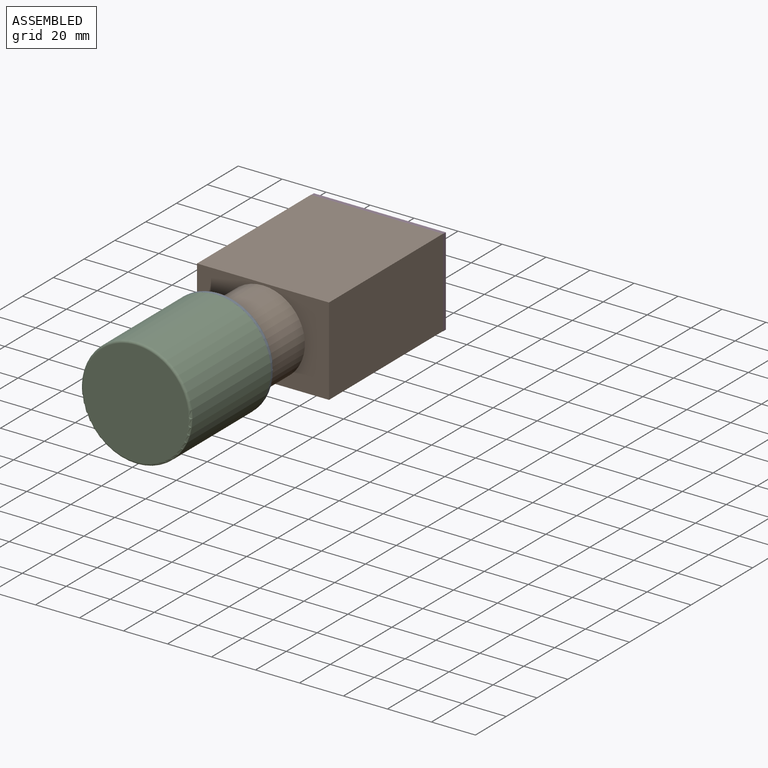
[diagram: assembled view]
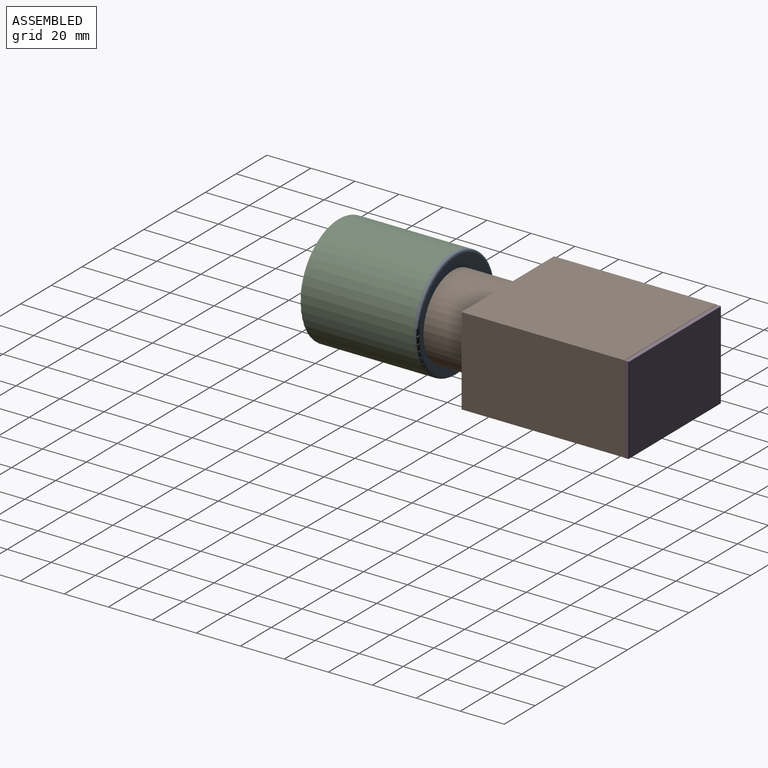
[diagram: assembled view, second angle]
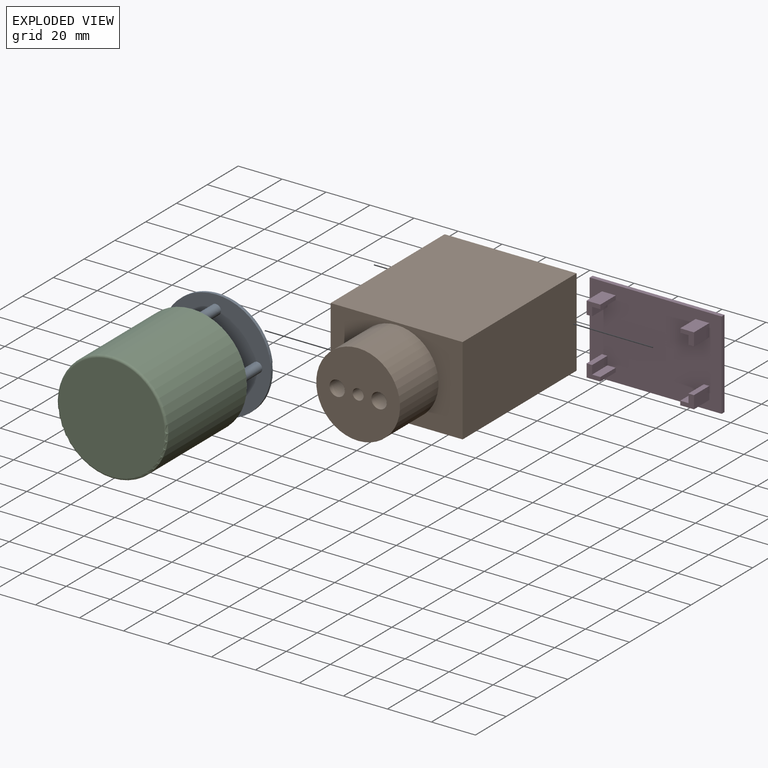
[diagram: exploded view]
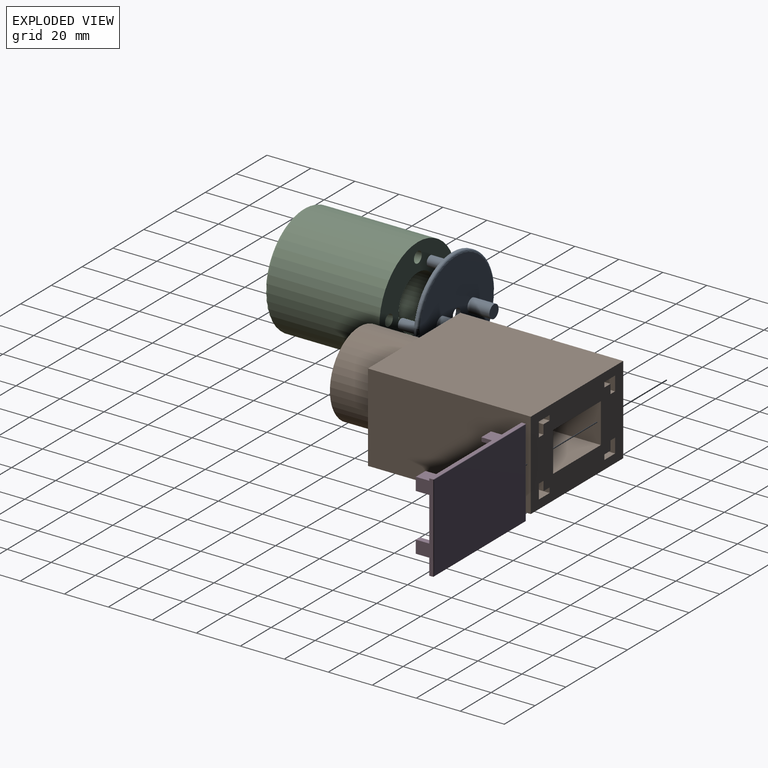
[diagram: exploded view, second angle]
ASSEMBLY  parts=4 mates=3
PART A: 17 faces, bbox 54.1x22x54.1 mm
  f0: cylinder r=25mm len=50mm, axis (0,1,0), area 157.1mm2, adj f1,f11
  f1: plane 50x50mm, normal (0,-1,0), area 1878.2mm2, adj f0,f3,f5,f7,f9,f12
  f2: plane 48x48mm, normal (0,1,0), area 1733.4mm2, adj f11,f12,f13,f15
  f3: cylinder r=2.29mm len=10mm, axis (0,1,0), area 143.6mm2, adj f1,f4
  f4: plane 4.57x4.57mm, normal (0,-1,0), area 16.4mm2, adj f3
  f5: cylinder r=2.29mm len=10mm, axis (0,1,0), area 143.6mm2, adj f1,f6
  f6: plane 4.57x4.57mm, normal (0,-1,0), area 16.4mm2, adj f5
  f7: cylinder r=2.29mm len=10mm, axis (0,1,0), area 143.6mm2, adj f1,f8
  f8: plane 4.57x4.57mm, normal (0,-1,0), area 16.4mm2, adj f7
  f9: cylinder r=2.29mm len=10mm, axis (0,1,0), area 143.6mm2, adj f1,f10
  f10: plane 4.57x4.57mm, normal (0,-1,0), area 16.4mm2, adj f9
  f11: torus R=24mm, axis (0,-1,0), area 243.2mm2, adj f0,f2
  f12: cylinder r=2.5mm len=5mm, axis (0,1,0), area 31.4mm2, adj f1,f2
  f13: cylinder r=3mm len=10mm, axis (0,-1,0), area 188.5mm2, adj f2,f14
  f14: plane 6x6mm, normal (0,1,0), area 28.3mm2, adj f13
  f15: cylinder r=3mm len=10mm, axis (0,-1,0), area 188.5mm2, adj f2,f16
  f16: plane 6x6mm, normal (0,1,0), area 28.3mm2, adj f15
PART B: 46 faces, bbox 60x99x40 mm
  f0: plane 60x40mm, normal (0,1,0), area 1727.4mm2, adj f2,f3,f4,f5,f7,f8,f9,f10
  f1: cylinder r=19.05mm len=38.1mm, axis (0,-1,0), area 2992.4mm2, adj f6,f43
  f2: plane 74x40mm, normal (-1,0,0), area 2960mm2, adj f0,f3,f5,f6
  f3: plane 74x60mm, normal (0,0,1), area 4440mm2, adj f0,f2,f4,f6
  f4: plane 74x40mm, normal (1,0,0), area 2960mm2, adj f0,f3,f5,f6
  f5: plane 74x60mm, normal (0,0,-1), area 4440mm2, adj f0,f2,f4,f6
  f6: plane 60x40mm, normal (0,-1,0), area 1259.9mm2, adj f1,f2,f3,f4,f5
  f7: plane 69x31mm, normal (0,0,-1), area 2139mm2, adj f0,f8,f10,f11
  f8: plane 69x18mm, normal (1,0,0), area 1242mm2, adj f0,f7,f9,f11
  f9: plane 69x31mm, normal (0,0,1), area 2139mm2, adj f0,f8,f10,f11
  f10: plane 69x18mm, normal (-1,0,0), area 1242mm2, adj f0,f7,f9,f11
  f11: plane 31x18mm, normal (0,1,0), area 538.4mm2, adj f7,f8,f9,f10,f12
  f12: cylinder r=2.5mm len=30mm, axis (0,-1,0), area 471.2mm2, adj f11,f43
  f13: plane 10x4.24mm, normal (1,0,0), area 42.4mm2, adj f0,f14,f18,f19
  f14: plane 10x4mm, normal (0,0,1), area 40mm2, adj f0,f13,f15,f19
  f15: plane 10x2.28mm, normal (1,0,0), area 22.8mm2, adj f0,f14,f16,f19
  f16: plane 10x7mm, normal (0,0,-1), area 70mm2, adj f0,f15,f17,f19
  f17: plane 10x6.52mm, normal (-1,0,0), area 65.2mm2, adj f0,f16,f18,f19
  f18: plane 10x3mm, normal (0,0,1), area 30mm2, adj f0,f13,f17,f19
  f19: plane 7x6.52mm, normal (0,1,0), area 28.7mm2, adj f13,f14,f15,f16,f17,f18
  f20: plane 10x4.24mm, normal (-1,0,0), area 42.4mm2, adj f0,f21,f25,f26
  f21: plane 10x4mm, normal (0,0,-1), area 40mm2, adj f0,f20,f22,f26
  f22: plane 10x2.28mm, normal (-1,0,0), area 22.8mm2, adj f0,f21,f23,f26
  f23: plane 10x7mm, normal (0,0,1), area 70mm2, adj f0,f22,f24,f26
  f24: plane 10x6.52mm, normal (1,0,0), area 65.2mm2, adj f0,f23,f25,f26
  f25: plane 10x3mm, normal (0,0,-1), area 30mm2, adj f0,f20,f24,f26
  f26: plane 7x6.52mm, normal (0,1,0), area 28.7mm2, adj f20,f21,f22,f23,f24,f25
  f27: plane 10x2.28mm, normal (-1,0,0), area 22.8mm2, adj f0,f28,f32,f33
  f28: plane 10x4mm, normal (0,0,1), area 40mm2, adj f0,f27,f29,f33
  f29: plane 10x4.24mm, normal (-1,0,0), area 42.4mm2, adj f0,f28,f30,f33
  f30: plane 10x3mm, normal (0,0,1), area 30mm2, adj f0,f29,f31,f33
  f31: plane 10x6.52mm, normal (1,0,0), area 65.2mm2, adj f0,f30,f32,f33
  f32: plane 10x7mm, normal (0,0,-1), area 70mm2, adj f0,f27,f31,f33
  f33: plane 7x6.52mm, normal (0,1,0), area 28.7mm2, adj f27,f28,f29,f30,f31,f32
  f34: plane 10x6.52mm, normal (-1,0,0), area 65.2mm2, adj f0,f35,f39,f40
  f35: plane 10x7mm, normal (0,0,1), area 70mm2, adj f0,f34,f36,f40
  f36: plane 10x2.28mm, normal (1,0,0), area 22.8mm2, adj f0,f35,f37,f40
  f37: plane 10x4mm, normal (0,0,-1), area 40mm2, adj f0,f36,f38,f40
  f38: plane 10x4.24mm, normal (1,0,0), area 42.4mm2, adj f0,f37,f39,f40
  f39: plane 10x3mm, normal (0,0,-1), area 30mm2, adj f0,f34,f38,f40
  f40: plane 7x6.52mm, normal (0,1,0), area 28.7mm2, adj f34,f35,f36,f37,f38,f39
  f41: plane 7x7mm, normal (0,-1,0), area 38.5mm2, adj f42
  f42: cylinder r=3.5mm len=10mm, axis (0,1,0), area 219.9mm2, adj f41,f43
  f43: plane 38.1x38.1mm, normal (0,-1,0), area 1043.5mm2, adj f1,f12,f42,f45
  f44: plane 7x7mm, normal (0,-1,0), area 38.5mm2, adj f45
  f45: cylinder r=3.5mm len=10mm, axis (0,1,0), area 219.9mm2, adj f43,f44
PART C: 14 faces, bbox 54.1x52x54.1 mm
  f0: cylinder r=25mm len=51mm, axis (0,1,0), area 8011.1mm2, adj f3,f5
  f1: plane 48x48mm, normal (0,-1,0), area 1809.6mm2, adj f5
  f2: cylinder r=12.5mm len=50mm, axis (0,-1,0), area 3927mm2, adj f3,f4
  f3: plane 50x50mm, normal (0,1,0), area 1391.5mm2, adj f0,f2,f6,f8,f10,f12
  f4: plane 25x25mm, normal (0,1,0), area 490.9mm2, adj f2
  f5: torus R=24mm, axis (0,-1,0), area 243.2mm2, adj f0,f1
  f6: cylinder r=2.54mm len=10mm, axis (0,1,0), area 159.6mm2, adj f3,f7
  f7: plane 5.08x5.08mm, normal (0,1,0), area 20.3mm2, adj f6
  f8: cylinder r=2.54mm len=10mm, axis (0,1,0), area 159.6mm2, adj f3,f9
  f9: plane 5.08x5.08mm, normal (0,1,0), area 20.3mm2, adj f8
  f10: cylinder r=2.54mm len=10mm, axis (0,1,0), area 159.6mm2, adj f3,f11
  f11: plane 5.08x5.08mm, normal (0,1,0), area 20.3mm2, adj f10
  f12: cylinder r=2.54mm len=10mm, axis (0,1,0), area 159.6mm2, adj f3,f13
  f13: plane 5.08x5.08mm, normal (0,1,0), area 20.3mm2, adj f12
PART D: 38 faces, bbox 60x12x40 mm
  f0: plane 60x40mm, normal (0,-1,0), area 2313.8mm2, adj f1,f2,f3,f4,f10,f11,f12,f13
  f1: plane 40x1.8mm, normal (1,0,0), area 72mm2, adj f0,f2,f4,f6
  f2: plane 60x1.8mm, normal (0,0,1), area 108mm2, adj f0,f1,f3,f7
  f3: plane 40x1.8mm, normal (-1,0,0), area 72mm2, adj f0,f2,f4,f9
  f4: plane 60x1.8mm, normal (0,0,-1), area 108mm2, adj f0,f1,f3,f8
  f5: plane 59.6x39.6mm, normal (0,1,0), area 2360.2mm2, adj f6,f7,f8,f9
  f6: cylinder r=0.2mm len=40mm, axis (0,0,1), area 12.5mm2, adj f1,f5,f7,f8
  f7: cylinder r=0.2mm len=60mm, axis (-1,0,0), area 18.8mm2, adj f2,f5,f6,f9
  f8: cylinder r=0.2mm len=60mm, axis (1,0,0), area 18.8mm2, adj f4,f5,f6,f9
  f9: cylinder r=0.2mm len=40mm, axis (0,0,-1), area 12.5mm2, adj f3,f5,f7,f8
  f10: plane 10x2.5mm, normal (0,0,1), area 25mm2, adj f0,f11,f15,f16
  f11: plane 10x3.94mm, normal (-1,0,0), area 39.4mm2, adj f0,f10,f12,f16
  f12: plane 10x3.75mm, normal (0,0,1), area 37.5mm2, adj f0,f11,f13,f16
  f13: plane 10x1.87mm, normal (-1,0,0), area 18.7mm2, adj f0,f12,f14,f16
  f14: plane 10x6.25mm, normal (0,0,-1), area 62.5mm2, adj f0,f13,f15,f16
  f15: plane 10x5.81mm, normal (1,0,0), area 58.1mm2, adj f0,f10,f14,f16
  f16: plane 6.25x5.81mm, normal (0,-1,0), area 21.6mm2, adj f10,f11,f12,f13,f14,f15
  f17: plane 10x1.87mm, normal (1,0,0), area 18.7mm2, adj f0,f18,f22,f23
  f18: plane 10x3.75mm, normal (0,0,1), area 37.5mm2, adj f0,f17,f19,f23
  f19: plane 10x3.94mm, normal (1,0,0), area 39.4mm2, adj f0,f18,f20,f23
  f20: plane 10x2.5mm, normal (0,0,1), area 25mm2, adj f0,f19,f21,f23
  f21: plane 10x5.81mm, normal (-1,0,0), area 58.1mm2, adj f0,f20,f22,f23
  f22: plane 10x6.25mm, normal (0,0,-1), area 62.5mm2, adj f0,f17,f21,f23
  f23: plane 6.25x5.81mm, normal (0,-1,0), area 21.6mm2, adj f17,f18,f19,f20,f21,f22
  f24: plane 10x2.5mm, normal (0,0,-1), area 25mm2, adj f0,f25,f29,f30
  f25: plane 10x3.94mm, normal (1,0,0), area 39.4mm2, adj f0,f24,f26,f30
  f26: plane 10x3.75mm, normal (0,0,-1), area 37.5mm2, adj f0,f25,f27,f30
  f27: plane 10x1.87mm, normal (1,0,0), area 18.7mm2, adj f0,f26,f28,f30
  f28: plane 10x6.25mm, normal (0,0,1), area 62.5mm2, adj f0,f27,f29,f30
  f29: plane 10x5.81mm, normal (-1,0,0), area 58.1mm2, adj f0,f24,f28,f30
  f30: plane 6.25x5.81mm, normal (0,-1,0), area 21.6mm2, adj f24,f25,f26,f27,f28,f29
  f31: plane 10x3.94mm, normal (-1,0,0), area 39.4mm2, adj f0,f32,f36,f37
  f32: plane 10x2.5mm, normal (0,0,-1), area 25mm2, adj f0,f31,f33,f37
  f33: plane 10x5.81mm, normal (1,0,0), area 58.1mm2, adj f0,f32,f34,f37
  f34: plane 10x6.25mm, normal (0,0,1), area 62.5mm2, adj f0,f33,f35,f37
  f35: plane 10x1.87mm, normal (-1,0,0), area 18.7mm2, adj f0,f34,f36,f37
  f36: plane 10x3.75mm, normal (0,0,-1), area 37.5mm2, adj f0,f31,f35,f37
  f37: plane 6.25x5.81mm, normal (0,-1,0), area 21.6mm2, adj f31,f32,f33,f34,f35,f36
PLACE A t=(-17.18,-7.74,55.7)mm
PLACE B t=(-14.7,2.26,55.7)mm
PLACE C t=(-17.18,-59.74,55.7)mm
PLACE D t=(-14.7,93.26,55.58)mm
MATE fastened A.f5 <-> C.f12  axis (0,-1,0) through (1.57,-19.74,55.7)mm
MATE slider A.f5 <-> C.f12  axis (0,1,0) through (1.57,-14.74,55.7)mm
MATE fastened D.f30 <-> B.f33  axis (0,-1,0) through (-36.84,81.26,69.13)mm
